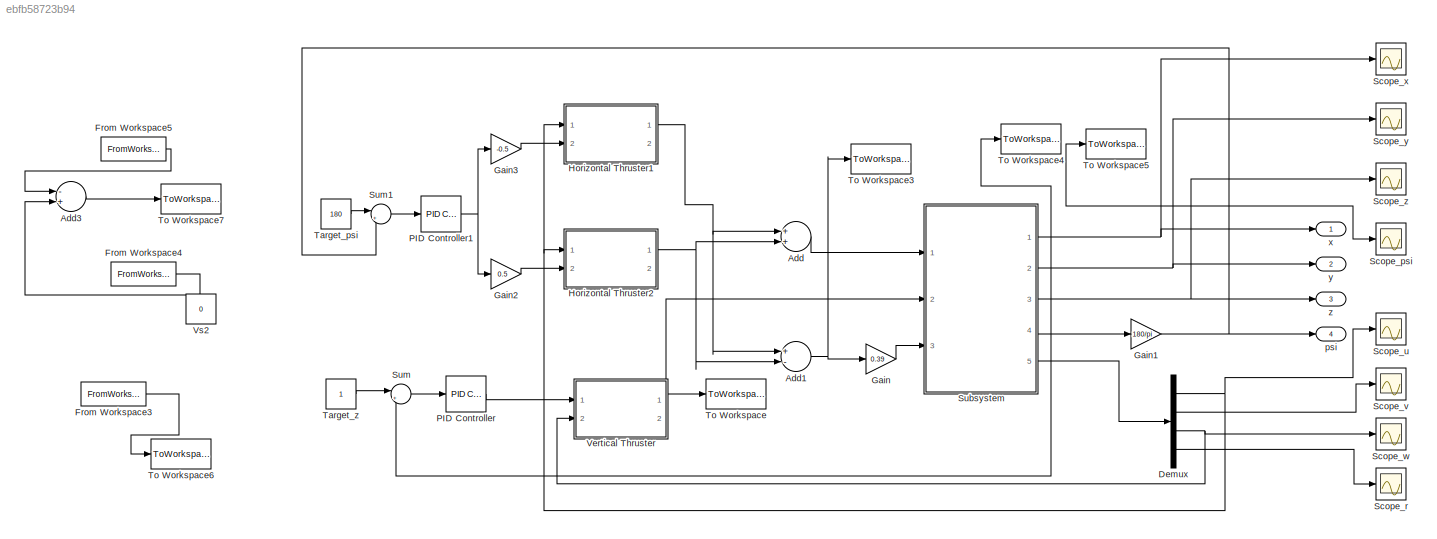
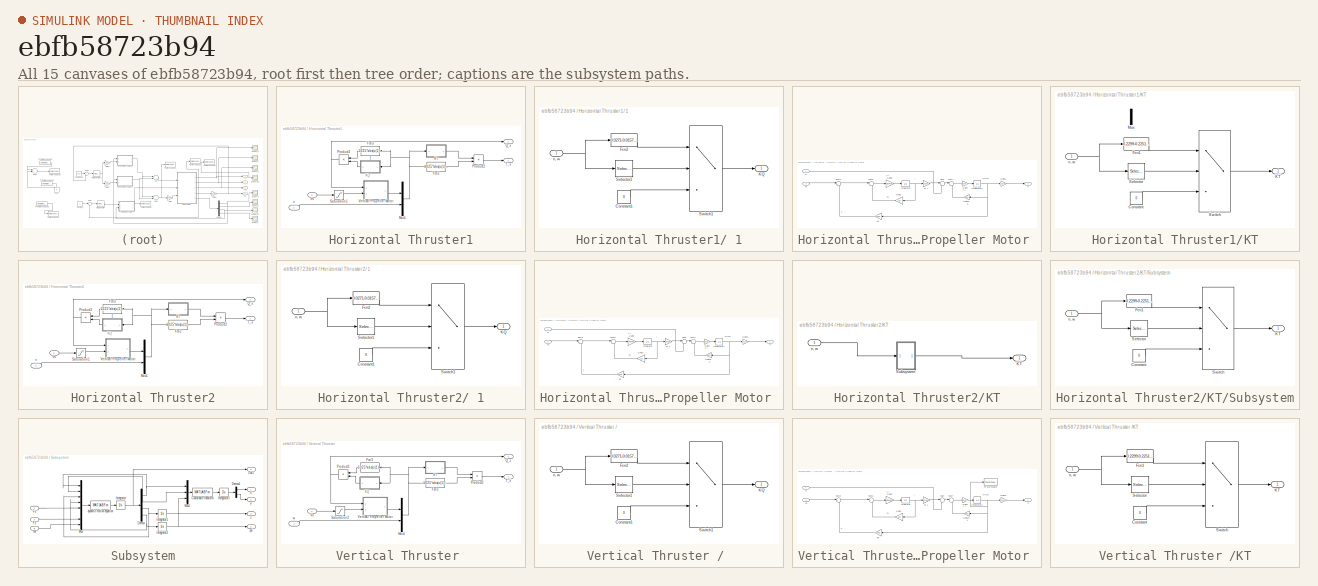
[diagram: thumbnail index - all 15 canvases of the model, root first then tree order]
MODEL slx_ebfb58723b94
KIND model
CONFIG AbsTol = auto
CONFIG EnableMultiTasking = off
CONFIG FixedStep = auto
CONFIG MaxStep = auto
CONFIG MinStep = auto
CONFIG RelTol = 1e-3
CONFIG SampleTimeConstraint = Unconstrained
CONFIG Solver = VariableStepAuto
CONFIG SolverName = VariableStepAuto
CONFIG StartTime = 0.0
CONFIG StopTime = 100
BLOCK [Sum] Add
  InputSameDT = off
  OutDataTypeStr = Inherit: Inherit via internal rule
  Ports = [2, 1]
  SaturateOnIntegerOverflow = off
BLOCK [Sum] Add1
  InputSameDT = off
  Inputs = +-
  OutDataTypeStr = Inherit: Inherit via internal rule
  Ports = [2, 1]
  SaturateOnIntegerOverflow = off
BLOCK [Sum] Add3
  InputSameDT = off
  Inputs = -+
  OutDataTypeStr = Inherit: Inherit via internal rule
  Ports = [2, 1]
  SaturateOnIntegerOverflow = off
BLOCK [Demux] Demux
  DisplayOption = bar
  Ports = [1, 4]
BLOCK [FromWorkspace] From Workspace3
  OutputAfterFinalValue = Setting to zero
  VariableName = signal
  ZeroCross = on
BLOCK [FromWorkspace] From Workspace4
  OutputAfterFinalValue = Setting to zero
  VariableName = signal
  ZeroCross = on
BLOCK [FromWorkspace] From Workspace5
  OutputAfterFinalValue = Setting to zero
  VariableName = signal_180
  ZeroCross = on
BLOCK [Gain] Gain
  Gain = 0.39
  OutDataTypeStr = Inherit: Inherit via internal rule
  ParamDataTypeStr = Inherit: Inherit via internal rule
  SaturateOnIntegerOverflow = off
BLOCK [Gain] Gain1
  Gain = 180/pi
  OutDataTypeStr = Inherit: Inherit via internal rule
  ParamDataTypeStr = Inherit: Inherit via internal rule
  SaturateOnIntegerOverflow = off
BLOCK [Gain] Gain2
  Gain = 0.5
  OutDataTypeStr = Inherit: Inherit via internal rule
  ParamDataTypeStr = Inherit: Inherit via internal rule
  SaturateOnIntegerOverflow = off
BLOCK [Gain] Gain3
  Gain = -0.5
  OutDataTypeStr = Inherit: Inherit via internal rule
  ParamDataTypeStr = Inherit: Inherit via internal rule
  SaturateOnIntegerOverflow = off
BLOCK [SubSystem] Horizontal Thruster1
  Ports = [2, 2]
  RequestExecContextInheritance = off
  Variant = off
BLOCK [SubSystem] Horizontal Thruster1/ 1
  Ports = [1, 1]
  RequestExecContextInheritance = off
  Variant = off
BLOCK [Constant] Horizontal Thruster1/ 1/Constant1
  Value = 0
BLOCK [Fcn] Horizontal Thruster1/ 1/Fcn2
  Expr = 0.0271-0.0157*0.7*u(2)/(u(1)*0.152)
BLOCK [Outport] Horizontal Thruster1/ 1/KQ
  IconDisplay = Port number
BLOCK [Selector] Horizontal Thruster1/ 1/Selector1
  IndexOptions = Index vector (dialog)
  Indices = [ 1 ]
  InputPortWidth = 2
  OutputSizes = 1
  Ports = [1, 1]
BLOCK [Switch] Horizontal Thruster1/ 1/Switch1
  Criteria = u2 ~= 0
  InputSameDT = off
  SaturateOnIntegerOverflow = off
BLOCK [Inport] Horizontal Thruster1/ 1/n, w
  IconDisplay = Port number
BLOCK [SubSystem] Horizontal Thruster1/ Vertical Propeller Motor 
  Ports = [2, 1]
  RequestExecContextInheritance = off
  Variant = off
BLOCK [Gain] Horizontal Thruster1/ Vertical Propeller Motor /Gain10
  Gain = 0.001
BLOCK [Gain] Horizontal Thruster1/ Vertical Propeller Motor /Gain11
  Gain = 1/(2*pi)
BLOCK [Gain] Horizontal Thruster1/ Vertical Propeller Motor /Gain2
  Gain = 11.8
  SaturateOnIntegerOverflow = off
BLOCK [Gain] Horizontal Thruster1/ Vertical Propeller Motor /Gain3
  Gain = 1/0.0468
  SaturateOnIntegerOverflow = off
BLOCK [Gain] Horizontal Thruster1/ Vertical Propeller Motor /Gain4
  Gain = 1/9.275e-4
BLOCK [Integrator] Horizontal Thruster1/ Vertical Propeller Motor /Integrator
  Ports = [1, 1]
BLOCK [Integrator] Horizontal Thruster1/ Vertical Propeller Motor /Integrator3
  Ports = [1, 1]
BLOCK [Gain] Horizontal Thruster1/ Vertical Propeller Motor /Ke
  Gain = 42*60/1000/(2*pi)
  OutDataTypeStr = Inherit: Inherit via internal rule
  ParamDataTypeStr = Inherit: Inherit via internal rule
  SaturateOnIntegerOverflow = off
BLOCK [Gain] Horizontal Thruster1/ Vertical Propeller Motor /Kt 1
  Gain = 0.399
  OutDataTypeStr = Inherit: Inherit via internal rule
  ParamDataTypeStr = Inherit: Inherit via internal rule
  SaturateOnIntegerOverflow = off
BLOCK [Inport] Horizontal Thruster1/ Vertical Propeller Motor /Q 
  IconDisplay = Port number
BLOCK [Sum] Horizontal Thruster1/ Vertical Propeller Motor /Sum
  IconShape = round
  InputSameDT = off
  Inputs = |+-
  OutDataTypeStr = Inherit: Inherit via internal rule
  Ports = [2, 1]
  SaturateOnIntegerOverflow = off
BLOCK [Sum] Horizontal Thruster1/ Vertical Propeller Motor /Sum2
  IconShape = round
  Inputs = |+-
  Ports = [2, 1]
BLOCK [Sum] Horizontal Thruster1/ Vertical Propeller Motor /Sum6
  IconShape = round
  Inputs = |+-
  Ports = [2, 1]
BLOCK [Sum] Horizontal Thruster1/ Vertical Propeller Motor /Sum7
  IconShape = round
  Inputs = |+-
  Ports = [2, 1]
BLOCK [Inport] Horizontal Thruster1/ Vertical Propeller Motor /Vs
  IconDisplay = Port number
  Port = 2
BLOCK [Outport] Horizontal Thruster1/ Vertical Propeller Motor /n
  IconDisplay = Port number
BLOCK [Fcn] Horizontal Thruster1/Fcn2
  Expr = 1025*abs(u(1))*u(1)*0.152^4
BLOCK [Fcn] Horizontal Thruster1/Fcn3
  Expr = 1025*abs(u(1))*u(1)*0.152^5
BLOCK [SubSystem] Horizontal Thruster1/KT
  Ports = [1, 1]
  RequestExecContextInheritance = off
  Variant = off
BLOCK [Constant] Horizontal Thruster1/KT/Constant
  Value = 0
BLOCK [Fcn] Horizontal Thruster1/KT/Fcn1
  Expr = 0.2299-0.2251*0.7*u(2)/(u(1)*0.152)
BLOCK [Outport] Horizontal Thruster1/KT/KT
  IconDisplay = Port number
BLOCK [Mux] Horizontal Thruster1/KT/Mux
  DisplayOption = bar
  Inputs = 2
  Ports = [2, 1]
BLOCK [Selector] Horizontal Thruster1/KT/Selector
  IndexOptions = Index vector (dialog)
  Indices = [ 1 ]
  InputPortWidth = 2
  OutputSizes = 1
  Ports = [1, 1]
BLOCK [Switch] Horizontal Thruster1/KT/Switch
  Criteria = u2 ~= 0
  InputSameDT = off
  SaturateOnIntegerOverflow = off
BLOCK [Inport] Horizontal Thruster1/KT/n, w
  IconDisplay = Port number
BLOCK [Mux] Horizontal Thruster1/Mux1
  DisplayOption = bar
  Inputs = 2
  Ports = [2, 1]
BLOCK [Product] Horizontal Thruster1/Product2
  InputSameDT = off
  OutDataTypeStr = Inherit: Inherit via internal rule
  Ports = [2, 1]
  RndMeth = Floor
  SaturateOnIntegerOverflow = off
BLOCK [Product] Horizontal Thruster1/Product3
  InputSameDT = off
  OutDataTypeStr = Inherit: Inherit via internal rule
  Ports = [2, 1]
  RndMeth = Floor
  SaturateOnIntegerOverflow = off
BLOCK [Outport] Horizontal Thruster1/Q_x
  IconDisplay = Port number
  Port = 2
BLOCK [Saturate] Horizontal Thruster1/Saturation1
  InputPortMap = u0
  LowerLimit = -100
  Ports = [1, 1]
  UpperLimit = 100
BLOCK [Outport] Horizontal Thruster1/T_x
  IconDisplay = Port number
BLOCK [Inport] Horizontal Thruster1/Vs
  IconDisplay = Port number
  Port = 2
BLOCK [Inport] Horizontal Thruster1/v
  IconDisplay = Port number
BLOCK [SubSystem] Horizontal Thruster2
  Ports = [2, 2]
  RequestExecContextInheritance = off
  Variant = off
BLOCK [SubSystem] Horizontal Thruster2/ 1
  Ports = [1, 1]
  RequestExecContextInheritance = off
  Variant = off
BLOCK [Constant] Horizontal Thruster2/ 1/Constant1
  Value = 0
BLOCK [Fcn] Horizontal Thruster2/ 1/Fcn2
  Expr = 0.0271-0.0157*0.7*u(2)/(u(1)*0.152)
BLOCK [Outport] Horizontal Thruster2/ 1/KQ
  IconDisplay = Port number
BLOCK [Selector] Horizontal Thruster2/ 1/Selector1
  IndexOptions = Index vector (dialog)
  Indices = [ 1 ]
  InputPortWidth = 2
  OutputSizes = 1
  Ports = [1, 1]
BLOCK [Switch] Horizontal Thruster2/ 1/Switch1
  Criteria = u2 ~= 0
  InputSameDT = off
  SaturateOnIntegerOverflow = off
BLOCK [Inport] Horizontal Thruster2/ 1/n, w
  IconDisplay = Port number
BLOCK [SubSystem] Horizontal Thruster2/ Vertical Propeller Motor 
  Ports = [2, 1]
  RequestExecContextInheritance = off
  Variant = off
BLOCK [Gain] Horizontal Thruster2/ Vertical Propeller Motor /Gain10
  Gain = 0.001
BLOCK [Gain] Horizontal Thruster2/ Vertical Propeller Motor /Gain11
  Gain = 1/(2*pi)
BLOCK [Gain] Horizontal Thruster2/ Vertical Propeller Motor /Gain2
  Gain = 11.8
  SaturateOnIntegerOverflow = off
BLOCK [Gain] Horizontal Thruster2/ Vertical Propeller Motor /Gain3
  Gain = 1/0.0468
  SaturateOnIntegerOverflow = off
BLOCK [Gain] Horizontal Thruster2/ Vertical Propeller Motor /Gain4
  Gain = 1/9.275e-4
BLOCK [Integrator] Horizontal Thruster2/ Vertical Propeller Motor /Integrator
  Ports = [1, 1]
BLOCK [Integrator] Horizontal Thruster2/ Vertical Propeller Motor /Integrator3
  Ports = [1, 1]
BLOCK [Gain] Horizontal Thruster2/ Vertical Propeller Motor /Ke
  Gain = 42*60/1000/(2*pi)
  OutDataTypeStr = Inherit: Inherit via internal rule
  ParamDataTypeStr = Inherit: Inherit via internal rule
  SaturateOnIntegerOverflow = off
BLOCK [Gain] Horizontal Thruster2/ Vertical Propeller Motor /Kt 1
  Gain = 0.399
  OutDataTypeStr = Inherit: Inherit via internal rule
  ParamDataTypeStr = Inherit: Inherit via internal rule
  SaturateOnIntegerOverflow = off
BLOCK [Inport] Horizontal Thruster2/ Vertical Propeller Motor /Q 
  IconDisplay = Port number
BLOCK [Sum] Horizontal Thruster2/ Vertical Propeller Motor /Sum
  IconShape = round
  InputSameDT = off
  Inputs = |+-
  OutDataTypeStr = Inherit: Inherit via internal rule
  Ports = [2, 1]
  SaturateOnIntegerOverflow = off
BLOCK [Sum] Horizontal Thruster2/ Vertical Propeller Motor /Sum2
  IconShape = round
  Inputs = |+-
  Ports = [2, 1]
BLOCK [Sum] Horizontal Thruster2/ Vertical Propeller Motor /Sum6
  IconShape = round
  Inputs = |+-
  Ports = [2, 1]
BLOCK [Sum] Horizontal Thruster2/ Vertical Propeller Motor /Sum7
  IconShape = round
  Inputs = |+-
  Ports = [2, 1]
BLOCK [Inport] Horizontal Thruster2/ Vertical Propeller Motor /Vs
  IconDisplay = Port number
  Port = 2
BLOCK [Outport] Horizontal Thruster2/ Vertical Propeller Motor /n
  IconDisplay = Port number
BLOCK [Fcn] Horizontal Thruster2/Fcn2
  Expr = 1025*abs(u(1))*u(1)*0.152^4
BLOCK [Fcn] Horizontal Thruster2/Fcn3
  Expr = 1025*abs(u(1))*u(1)*0.152^5
BLOCK [SubSystem] Horizontal Thruster2/KT
  Ports = [1, 1]
  RequestExecContextInheritance = off
  Variant = off
BLOCK [Outport] Horizontal Thruster2/KT/KT
  IconDisplay = Port number
BLOCK [SubSystem] Horizontal Thruster2/KT/Subsystem
  Ports = [1, 1]
  RequestExecContextInheritance = off
  Variant = off
BLOCK [Constant] Horizontal Thruster2/KT/Subsystem/Constant
  Value = 0
BLOCK [Fcn] Horizontal Thruster2/KT/Subsystem/Fcn1
  Expr = 0.2299-0.2251*0.7*u(2)/(u(1)*0.152)
BLOCK [Outport] Horizontal Thruster2/KT/Subsystem/KT
  IconDisplay = Port number
BLOCK [Selector] Horizontal Thruster2/KT/Subsystem/Selector
  IndexOptions = Index vector (dialog)
  Indices = [ 1 ]
  InputPortWidth = 2
  OutputSizes = 1
  Ports = [1, 1]
BLOCK [Switch] Horizontal Thruster2/KT/Subsystem/Switch
  Criteria = u2 ~= 0
  InputSameDT = off
  SaturateOnIntegerOverflow = off
BLOCK [Inport] Horizontal Thruster2/KT/Subsystem/n, w
  IconDisplay = Port number
BLOCK [Inport] Horizontal Thruster2/KT/n, w
  IconDisplay = Port number
BLOCK [Mux] Horizontal Thruster2/Mux1
  DisplayOption = bar
  Inputs = 2
  Ports = [2, 1]
BLOCK [Product] Horizontal Thruster2/Product2
  InputSameDT = off
  OutDataTypeStr = Inherit: Inherit via internal rule
  Ports = [2, 1]
  RndMeth = Floor
  SaturateOnIntegerOverflow = off
BLOCK [Product] Horizontal Thruster2/Product3
  InputSameDT = off
  OutDataTypeStr = Inherit: Inherit via internal rule
  Ports = [2, 1]
  RndMeth = Floor
  SaturateOnIntegerOverflow = off
BLOCK [Outport] Horizontal Thruster2/Q_x
  IconDisplay = Port number
  Port = 2
BLOCK [Saturate] Horizontal Thruster2/Saturation1
  InputPortMap = u0
  LowerLimit = -100
  Ports = [1, 1]
  UpperLimit = 100
BLOCK [Outport] Horizontal Thruster2/T_x
  IconDisplay = Port number
BLOCK [Inport] Horizontal Thruster2/Vs
  IconDisplay = Port number
  Port = 2
BLOCK [Inport] Horizontal Thruster2/v
  IconDisplay = Port number
BLOCK [Reference] PID Controller  REF=simulink/Continuous/PID Controller
  Ports = [1, 1]
  SourceBlock = simulink/Continuous/PID Controller
  SourceProductBaseCode = SL
  SourceProductName = Simulink
  SourceType = PID 1dof
BLOCK [Reference] PID Controller1  REF=simulink/Continuous/PID Controller
  Ports = [1, 1]
  SourceBlock = simulink/Continuous/PID Controller
  SourceProductBaseCode = SL
  SourceProductName = Simulink
  SourceType = PID 1dof
BLOCK [Scope] Scope_psi
  NumInputPorts = 1
  Ports = [1]
  ScopeSpecificationString = Simulink.scopes.TimeScopeBlockCfg('CurrentConfiguration', extmgr.ConfigurationSet(extmgr.Configuration('Core','General UI',true),extmgr.Configuration('Core','Source UI',true),extmgr.Configuration('Sources','WiredSimulink',true,'DataLoggingVariableName','ScopeData3'),extmgr.Configuration('Visuals','Time Domain',true,'SerializedDisplays',{struct('MinYLimReal','-26.98675','MaxYLimReal','242.88075','Y...<+1404ch>
BLOCK [Scope] Scope_r
  NumInputPorts = 1
  Ports = [1]
  ScopeSpecificationString = Simulink.scopes.TimeScopeBlockCfg('CurrentConfiguration', extmgr.ConfigurationSet(extmgr.Configuration('Core','General UI',true,'FigureColor',[0 0 0]),extmgr.Configuration('Core','Source UI',true),extmgr.Configuration('Sources','WiredSimulink',true,'DataLoggingVariableName','ScopeData7'),extmgr.Configuration('Visuals','Time Domain',true,'SerializedDisplays',{struct('MinYLimReal','-0.09461','MaxYLi...<+1504ch>
BLOCK [Scope] Scope_u
  NumInputPorts = 1
  Ports = [1]
  ScopeSpecificationString = Simulink.scopes.TimeScopeBlockCfg('CurrentConfiguration', extmgr.ConfigurationSet(extmgr.Configuration('Core','General UI',true),extmgr.Configuration('Core','Source UI',true),extmgr.Configuration('Sources','WiredSimulink',true,'DataLoggingVariableName','ScopeData4'),extmgr.Configuration('Visuals','Time Domain',true,'SerializedDisplays',{struct('MinYLimReal','-1.00000','MaxYLimReal','1.00000','YLab...<+1366ch>
BLOCK [Scope] Scope_v
  NumInputPorts = 1
  Ports = [1]
  ScopeSpecificationString = Simulink.scopes.TimeScopeBlockCfg('CurrentConfiguration', extmgr.ConfigurationSet(extmgr.Configuration('Core','General UI',true),extmgr.Configuration('Core','Source UI',true),extmgr.Configuration('Sources','WiredSimulink',true,'DataLoggingVariableName','ScopeData5'),extmgr.Configuration('Visuals','Time Domain',true,'SerializedDisplays',{struct('MinYLimReal','-1.00000','MaxYLimReal','1.00000','YLab...<+1366ch>
BLOCK [Scope] Scope_w
  NumInputPorts = 1
  Ports = [1]
  ScopeSpecificationString = Simulink.scopes.TimeScopeBlockCfg('CurrentConfiguration', extmgr.ConfigurationSet(extmgr.Configuration('Core','General UI',true),extmgr.Configuration('Core','Source UI',true),extmgr.Configuration('Sources','WiredSimulink',true,'DataLoggingVariableName','ScopeData6'),extmgr.Configuration('Visuals','Time Domain',true,'SerializedDisplays',{struct('MinYLimReal','-1.00000','MaxYLimReal','1.00000','YLab...<+1421ch>
BLOCK [Scope] Scope_x
  NumInputPorts = 1
  Ports = [1]
  ScopeSpecificationString = Simulink.scopes.TimeScopeBlockCfg('CurrentConfiguration', extmgr.ConfigurationSet(extmgr.Configuration('Core','General UI',true),extmgr.Configuration('Core','Source UI',true),extmgr.Configuration('Sources','WiredSimulink',true),extmgr.Configuration('Visuals','Time Domain',true,'SerializedDisplays',{struct('MinYLimReal','-0.000000000000000000000000000009','MaxYLimReal','0.00000000000000000000000000...<+1586ch>
BLOCK [Scope] Scope_y
  NumInputPorts = 1
  Ports = [1]
  ScopeSpecificationString = Simulink.scopes.TimeScopeBlockCfg('CurrentConfiguration', extmgr.ConfigurationSet(extmgr.Configuration('Core','General UI',true),extmgr.Configuration('Core','Source UI',true),extmgr.Configuration('Sources','WiredSimulink',true,'DataLoggingVariableName','ScopeData1'),extmgr.Configuration('Visuals','Time Domain',true,'SerializedDisplays',{struct('MinYLimReal','-0.0000000000000000000000000000001','Ma...<+1629ch>
BLOCK [Scope] Scope_z
  NumInputPorts = 1
  Ports = [1]
  ScopeSpecificationString = Simulink.scopes.TimeScopeBlockCfg('CurrentConfiguration', extmgr.ConfigurationSet(extmgr.Configuration('Core','General UI',true),extmgr.Configuration('Core','Source UI',true),extmgr.Configuration('Sources','WiredSimulink',true,'DataLoggingVariableName','ScopeData2'),extmgr.Configuration('Visuals','Time Domain',true,'SerializedDisplays',{struct('MinYLimReal','-1.00000','MaxYLimReal','1.00000','YLab...<+1400ch>
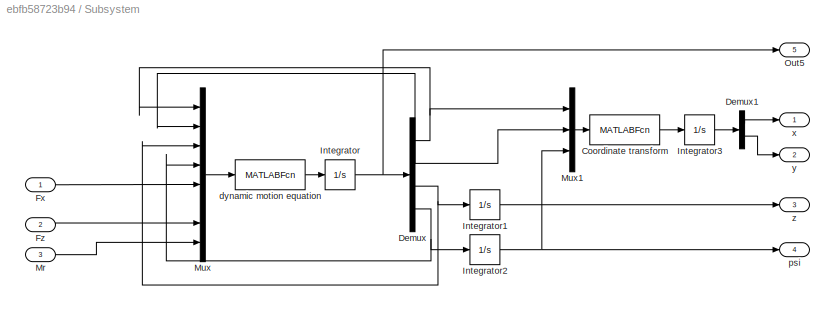
BLOCK [SubSystem] Subsystem
  Ports = [3, 5]
  RequestExecContextInheritance = off
  Variant = off
BLOCK [MATLABFcn] Subsystem/Coordinate transform 
  MATLABFcn = frame
  OutputDimensions = 2
  Ports = [1, 1]
BLOCK [Demux] Subsystem/Demux
  DisplayOption = bar
  Ports = [1, 4]
BLOCK [Demux] Subsystem/Demux1
  DisplayOption = bar
  Outputs = 2
  Ports = [1, 2]
BLOCK [Inport] Subsystem/Fx
  IconDisplay = Port number
BLOCK [Inport] Subsystem/Fz
  IconDisplay = Port number
  Port = 2
BLOCK [Integrator] Subsystem/Integrator
  Ports = [1, 1]
BLOCK [Integrator] Subsystem/Integrator1
  Ports = [1, 1]
BLOCK [Integrator] Subsystem/Integrator2
  Ports = [1, 1]
BLOCK [Integrator] Subsystem/Integrator3
  Ports = [1, 1]
BLOCK [Inport] Subsystem/Mr
  IconDisplay = Port number
  Port = 3
BLOCK [Mux] Subsystem/Mux
  DisplayOption = bar
  Inputs = 8
  Ports = [8, 1]
BLOCK [Mux] Subsystem/Mux1
  DisplayOption = bar
  Inputs = 3
  Ports = [3, 1]
BLOCK [Outport] Subsystem/Out5
  IconDisplay = Port number
  Port = 5
BLOCK [MATLABFcn] Subsystem/dynamic motion equation 
  MATLABFcn = dynamic_equation
  OutputDimensions = 4
  Ports = [1, 1]
BLOCK [Outport] Subsystem/psi
  IconDisplay = Port number
  Port = 4
BLOCK [Outport] Subsystem/x
  IconDisplay = Port number
BLOCK [Outport] Subsystem/y
  IconDisplay = Port number
  Port = 2
BLOCK [Outport] Subsystem/z
  IconDisplay = Port number
  Port = 3
BLOCK [Sum] Sum
  IconShape = round
  InputSameDT = off
  Inputs = |+-
  OutDataTypeStr = Inherit: Inherit via internal rule
  Ports = [2, 1]
  SaturateOnIntegerOverflow = off
BLOCK [Sum] Sum1
  IconShape = round
  InputSameDT = off
  Inputs = |+-
  OutDataTypeStr = Inherit: Inherit via internal rule
  Ports = [2, 1]
  SaturateOnIntegerOverflow = off
BLOCK [Constant] Target_psi
  Value = 180
BLOCK [Constant] Target_z
BLOCK [ToWorkspace] To Workspace
  FixptAsFi = on
  MaxDataPoints = inf
  Ports = [1]
  SampleTime = [0.002,0]
  VariableName = Tz
BLOCK [ToWorkspace] To Workspace3
  FixptAsFi = on
  MaxDataPoints = inf
  Ports = [1]
  SampleTime = [0.002,0]
  VariableName = delta_Tx
BLOCK [ToWorkspace] To Workspace4
  FixptAsFi = on
  MaxDataPoints = inf
  Ports = [1]
  SampleTime = [0.002,0]
  VariableName = z
BLOCK [ToWorkspace] To Workspace5
  FixptAsFi = on
  MaxDataPoints = inf
  Ports = [1]
  SampleTime = [0.002,0]
  VariableName = psi
BLOCK [ToWorkspace] To Workspace6
  FixptAsFi = on
  MaxDataPoints = inf
  Ports = [1]
  SampleTime = 0.002
  Save2DSignal = 2-D array (concatenate along first dimension)
  VariableName = vs
BLOCK [ToWorkspace] To Workspace7
  FixptAsFi = on
  MaxDataPoints = inf
  Ports = [1]
  SampleTime = 0.002
  Save2DSignal = 2-D array (concatenate along first dimension)
  VariableName = delta_vs1
BLOCK [SubSystem] Vertical Thruster 
  Ports = [2, 2]
  RequestExecContextInheritance = off
  Variant = off
BLOCK [SubSystem] Vertical Thruster / 
  Ports = [1, 1]
  RequestExecContextInheritance = off
  Variant = off
BLOCK [Constant] Vertical Thruster / /Constant1
  Value = 0
BLOCK [Fcn] Vertical Thruster / /Fcn2
  Expr = 0.0271-0.0157*0.7*u(2)/(u(1)*0.152)
BLOCK [Outport] Vertical Thruster / /KQ
  IconDisplay = Port number
BLOCK [Selector] Vertical Thruster / /Selector1
  IndexOptions = Index vector (dialog)
  Indices = [ 1 ]
  InputPortWidth = 2
  OutputSizes = 1
  Ports = [1, 1]
BLOCK [Switch] Vertical Thruster / /Switch1
  Criteria = u2 ~= 0
  InputSameDT = off
  SaturateOnIntegerOverflow = off
BLOCK [Inport] Vertical Thruster / /n, w
  IconDisplay = Port number
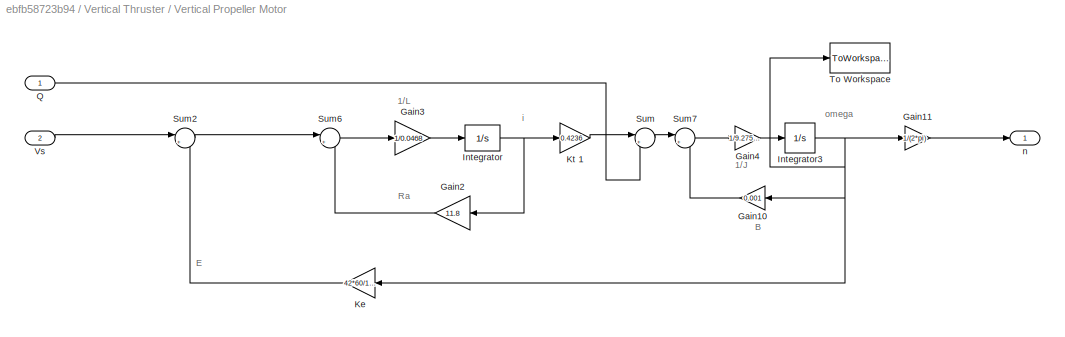
BLOCK [SubSystem] Vertical Thruster / Vertical Propeller Motor 
  Ports = [2, 1]
  RequestExecContextInheritance = off
  Variant = off
BLOCK [Gain] Vertical Thruster / Vertical Propeller Motor /Gain10
  Gain = 0.001
BLOCK [Gain] Vertical Thruster / Vertical Propeller Motor /Gain11
  Gain = 1/(2*pi)
BLOCK [Gain] Vertical Thruster / Vertical Propeller Motor /Gain2
  Gain = 11.8
  SaturateOnIntegerOverflow = off
BLOCK [Gain] Vertical Thruster / Vertical Propeller Motor /Gain3
  Gain = 1/0.0468
  SaturateOnIntegerOverflow = off
BLOCK [Gain] Vertical Thruster / Vertical Propeller Motor /Gain4
  Gain = 1/9.275e-4
BLOCK [Integrator] Vertical Thruster / Vertical Propeller Motor /Integrator
  Ports = [1, 1]
BLOCK [Integrator] Vertical Thruster / Vertical Propeller Motor /Integrator3
  Ports = [1, 1]
BLOCK [Gain] Vertical Thruster / Vertical Propeller Motor /Ke
  Gain = 42*60/1000/(2*pi)
  OutDataTypeStr = Inherit: Inherit via internal rule
  ParamDataTypeStr = Inherit: Inherit via internal rule
  SaturateOnIntegerOverflow = off
BLOCK [Gain] Vertical Thruster / Vertical Propeller Motor /Kt 1
  Gain = 0.4236
  OutDataTypeStr = Inherit: Inherit via internal rule
  ParamDataTypeStr = Inherit: Inherit via internal rule
  SaturateOnIntegerOverflow = off
BLOCK [Inport] Vertical Thruster / Vertical Propeller Motor /Q 
  IconDisplay = Port number
BLOCK [Sum] Vertical Thruster / Vertical Propeller Motor /Sum
  IconShape = round
  InputSameDT = off
  Inputs = |+-
  OutDataTypeStr = Inherit: Inherit via internal rule
  Ports = [2, 1]
  SaturateOnIntegerOverflow = off
BLOCK [Sum] Vertical Thruster / Vertical Propeller Motor /Sum2
  IconShape = round
  Inputs = |+-
  Ports = [2, 1]
BLOCK [Sum] Vertical Thruster / Vertical Propeller Motor /Sum6
  IconShape = round
  Inputs = |+-
  Ports = [2, 1]
BLOCK [Sum] Vertical Thruster / Vertical Propeller Motor /Sum7
  IconShape = round
  Inputs = |+-
  Ports = [2, 1]
BLOCK [ToWorkspace] Vertical Thruster / Vertical Propeller Motor /To Workspace
  FixptAsFi = on
  MaxDataPoints = inf
  Ports = [1]
  SampleTime = 0.002
  Save2DSignal = 2-D array (concatenate along first dimension)
  VariableName = omega
BLOCK [Inport] Vertical Thruster / Vertical Propeller Motor /Vs
  IconDisplay = Port number
  Port = 2
BLOCK [Outport] Vertical Thruster / Vertical Propeller Motor /n
  IconDisplay = Port number
BLOCK [Fcn] Vertical Thruster /Fcn2
  Expr = 1025*abs(u(1))*u(1)*0.152^4
BLOCK [Fcn] Vertical Thruster /Fcn3
  Expr = 1025*abs(u(1))*u(1)*0.152^5
BLOCK [SubSystem] Vertical Thruster /KT
  Ports = [1, 1]
  RequestExecContextInheritance = off
  Variant = off
BLOCK [Constant] Vertical Thruster /KT/Constant
  Value = 0
BLOCK [Fcn] Vertical Thruster /KT/Fcn1
  Expr = 0.2299-0.2251*0.7*u(2)/(u(1)*0.152)
BLOCK [Outport] Vertical Thruster /KT/KT
  IconDisplay = Port number
BLOCK [Selector] Vertical Thruster /KT/Selector
  IndexOptions = Index vector (dialog)
  Indices = [ 1 ]
  InputPortWidth = 2
  OutputSizes = 1
  Ports = [1, 1]
BLOCK [Switch] Vertical Thruster /KT/Switch
  Criteria = u2 ~= 0
  InputSameDT = off
  SaturateOnIntegerOverflow = off
BLOCK [Inport] Vertical Thruster /KT/n, w
  IconDisplay = Port number
BLOCK [Mux] Vertical Thruster /Mux1
  DisplayOption = bar
  Inputs = 2
  Ports = [2, 1]
BLOCK [Product] Vertical Thruster /Product2
  InputSameDT = off
  OutDataTypeStr = Inherit: Inherit via internal rule
  Ports = [2, 1]
  RndMeth = Floor
  SaturateOnIntegerOverflow = off
BLOCK [Product] Vertical Thruster /Product3
  InputSameDT = off
  OutDataTypeStr = Inherit: Inherit via internal rule
  Ports = [2, 1]
  RndMeth = Floor
  SaturateOnIntegerOverflow = off
BLOCK [Outport] Vertical Thruster /Q_z
  IconDisplay = Port number
  Port = 2
BLOCK [Saturate] Vertical Thruster /Saturation2
  InputPortMap = u0
  LowerLimit = -100
  Ports = [1, 1]
  UpperLimit = 100
BLOCK [Outport] Vertical Thruster /T_z
  IconDisplay = Port number
BLOCK [Inport] Vertical Thruster /Vs
  IconDisplay = Port number
BLOCK [Inport] Vertical Thruster /w
  IconDisplay = Port number
  Port = 2
BLOCK [Constant] Vs2
  Value = 0
BLOCK [Outport] psi
  IconDisplay = Port number
  Port = 4
BLOCK [Outport] x
  IconDisplay = Port number
BLOCK [Outport] y
  IconDisplay = Port number
  Port = 2
BLOCK [Outport] z
  IconDisplay = Port number
  Port = 3
ANNOTATION Horizontal Thruster1: KQ
ANNOTATION Horizontal Thruster1/ Vertical Propeller Motor : 1/J
ANNOTATION Horizontal Thruster1/ Vertical Propeller Motor : 1/L
ANNOTATION Horizontal Thruster1/ Vertical Propeller Motor : B
ANNOTATION Horizontal Thruster1/ Vertical Propeller Motor : E
ANNOTATION Horizontal Thruster1/ Vertical Propeller Motor : Ra
ANNOTATION Horizontal Thruster1/ Vertical Propeller Motor : i
ANNOTATION Horizontal Thruster1/ Vertical Propeller Motor : omega
ANNOTATION Horizontal Thruster2: KQ
ANNOTATION Horizontal Thruster2/ Vertical Propeller Motor : 1/J
ANNOTATION Horizontal Thruster2/ Vertical Propeller Motor : 1/L
ANNOTATION Horizontal Thruster2/ Vertical Propeller Motor : B
ANNOTATION Horizontal Thruster2/ Vertical Propeller Motor : E
ANNOTATION Horizontal Thruster2/ Vertical Propeller Motor : Ra
ANNOTATION Horizontal Thruster2/ Vertical Propeller Motor : i
ANNOTATION Horizontal Thruster2/ Vertical Propeller Motor : omega
ANNOTATION Vertical Thruster : KQ
ANNOTATION Vertical Thruster / Vertical Propeller Motor : 1/J
ANNOTATION Vertical Thruster / Vertical Propeller Motor : 1/L
ANNOTATION Vertical Thruster / Vertical Propeller Motor : B
ANNOTATION Vertical Thruster / Vertical Propeller Motor : E
ANNOTATION Vertical Thruster / Vertical Propeller Motor : Ra
ANNOTATION Vertical Thruster / Vertical Propeller Motor : i
ANNOTATION Vertical Thruster / Vertical Propeller Motor : omega
NET Add1:1 -> Gain:1, To Workspace3:1
LINE Add3:1 -> To Workspace7:1
LINE Add:1 -> Subsystem:1
NET Demux:1 -> Horizontal Thruster1:1, Horizontal Thruster2:1, Scope_u:1
LINE Demux:2 -> Scope_v:1
NET Demux:3 -> Scope_w:1, Vertical Thruster :2
LINE Demux:4 -> Scope_r:1
LINE From Workspace3:1 -> To Workspace6:1
LINE From Workspace4:1 -> Add3:2
LINE From Workspace5:1 -> Add3:1
NET Gain1:1 -> Scope_psi:1, Sum1:2, To Workspace5:1, psi:1
LINE Gain2:1 -> Horizontal Thruster2:2
LINE Gain3:1 -> Horizontal Thruster1:2
LINE Gain:1 -> Subsystem:3
LINE Horizontal Thruster1/ 1/Constant1:1 -> Horizontal Thruster1/ 1/Switch1:3
LINE Horizontal Thruster1/ 1/Fcn2:1 -> Horizontal Thruster1/ 1/Switch1:1
LINE Horizontal Thruster1/ 1/Selector1:1 -> Horizontal Thruster1/ 1/Switch1:2
LINE Horizontal Thruster1/ 1/Switch1:1 -> Horizontal Thruster1/ 1/KQ:1
NET Horizontal Thruster1/ 1/n, w:1 -> Horizontal Thruster1/ 1/Fcn2:1, Horizontal Thruster1/ 1/Selector1:1
LINE Horizontal Thruster1/ 1:1 -> Horizontal Thruster1/Product3:2
LINE Horizontal Thruster1/ Vertical Propeller Motor /Gain10:1 -> Horizontal Thruster1/ Vertical Propeller Motor /Sum7:2
LINE Horizontal Thruster1/ Vertical Propeller Motor /Gain11:1 -> Horizontal Thruster1/ Vertical Propeller Motor /n:1
LINE Horizontal Thruster1/ Vertical Propeller Motor /Gain2:1 -> Horizontal Thruster1/ Vertical Propeller Motor /Sum6:2
LINE Horizontal Thruster1/ Vertical Propeller Motor /Gain3:1 -> Horizontal Thruster1/ Vertical Propeller Motor /Integrator:1
LINE Horizontal Thruster1/ Vertical Propeller Motor /Gain4:1 -> Horizontal Thruster1/ Vertical Propeller Motor /Integrator3:1
NET Horizontal Thruster1/ Vertical Propeller Motor /Integrator3:1 -> Horizontal Thruster1/ Vertical Propeller Motor /Gain10:1, Horizontal Thruster1/ Vertical Propeller Motor /Gain11:1, Horizontal Thruster1/ Vertical Propeller Motor /Ke:1
NET Horizontal Thruster1/ Vertical Propeller Motor /Integrator:1 -> Horizontal Thruster1/ Vertical Propeller Motor /Gain2:1, Horizontal Thruster1/ Vertical Propeller Motor /Kt 1:1
LINE Horizontal Thruster1/ Vertical Propeller Motor /Ke:1 -> Horizontal Thruster1/ Vertical Propeller Motor /Sum2:2
LINE Horizontal Thruster1/ Vertical Propeller Motor /Kt 1:1 -> Horizontal Thruster1/ Vertical Propeller Motor /Sum:1
LINE Horizontal Thruster1/ Vertical Propeller Motor /Q :1 -> Horizontal Thruster1/ Vertical Propeller Motor /Sum:2
LINE Horizontal Thruster1/ Vertical Propeller Motor /Sum2:1 -> Horizontal Thruster1/ Vertical Propeller Motor /Sum6:1
LINE Horizontal Thruster1/ Vertical Propeller Motor /Sum6:1 -> Horizontal Thruster1/ Vertical Propeller Motor /Gain3:1
LINE Horizontal Thruster1/ Vertical Propeller Motor /Sum7:1 -> Horizontal Thruster1/ Vertical Propeller Motor /Gain4:1
LINE Horizontal Thruster1/ Vertical Propeller Motor /Sum:1 -> Horizontal Thruster1/ Vertical Propeller Motor /Sum7:1
LINE Horizontal Thruster1/ Vertical Propeller Motor /Vs:1 -> Horizontal Thruster1/ Vertical Propeller Motor /Sum2:1
LINE Horizontal Thruster1/ Vertical Propeller Motor :1 -> Horizontal Thruster1/Mux1:1
LINE Horizontal Thruster1/Fcn2:1 -> Horizontal Thruster1/Product2:2
LINE Horizontal Thruster1/Fcn3:1 -> Horizontal Thruster1/Product3:1
LINE Horizontal Thruster1/KT/Constant:1 -> Horizontal Thruster1/KT/Switch:3
LINE Horizontal Thruster1/KT/Fcn1:1 -> Horizontal Thruster1/KT/Switch:1
LINE Horizontal Thruster1/KT/Selector:1 -> Horizontal Thruster1/KT/Switch:2
LINE Horizontal Thruster1/KT/Switch:1 -> Horizontal Thruster1/KT/KT:1
NET Horizontal Thruster1/KT/n, w:1 -> Horizontal Thruster1/KT/Fcn1:1, Horizontal Thruster1/KT/Selector:1
LINE Horizontal Thruster1/KT:1 -> Horizontal Thruster1/Product2:1
NET Horizontal Thruster1/Mux1:1 -> Horizontal Thruster1/ 1:1, Horizontal Thruster1/Fcn2:1, Horizontal Thruster1/Fcn3:1, Horizontal Thruster1/KT:1
LINE Horizontal Thruster1/Product2:1 -> Horizontal Thruster1/T_x:1
NET Horizontal Thruster1/Product3:1 -> Horizontal Thruster1/ Vertical Propeller Motor :1, Horizontal Thruster1/Q_x:1
LINE Horizontal Thruster1/Saturation1:1 -> Horizontal Thruster1/ Vertical Propeller Motor :2
LINE Horizontal Thruster1/Vs:1 -> Horizontal Thruster1/Saturation1:1
LINE Horizontal Thruster1/v:1 -> Horizontal Thruster1/Mux1:2
NET Horizontal Thruster1:1 -> Add1:1, Add:1
LINE Horizontal Thruster2/ 1/Constant1:1 -> Horizontal Thruster2/ 1/Switch1:3
LINE Horizontal Thruster2/ 1/Fcn2:1 -> Horizontal Thruster2/ 1/Switch1:1
LINE Horizontal Thruster2/ 1/Selector1:1 -> Horizontal Thruster2/ 1/Switch1:2
LINE Horizontal Thruster2/ 1/Switch1:1 -> Horizontal Thruster2/ 1/KQ:1
NET Horizontal Thruster2/ 1/n, w:1 -> Horizontal Thruster2/ 1/Fcn2:1, Horizontal Thruster2/ 1/Selector1:1
LINE Horizontal Thruster2/ 1:1 -> Horizontal Thruster2/Product3:2
LINE Horizontal Thruster2/ Vertical Propeller Motor /Gain10:1 -> Horizontal Thruster2/ Vertical Propeller Motor /Sum7:2
LINE Horizontal Thruster2/ Vertical Propeller Motor /Gain11:1 -> Horizontal Thruster2/ Vertical Propeller Motor /n:1
LINE Horizontal Thruster2/ Vertical Propeller Motor /Gain2:1 -> Horizontal Thruster2/ Vertical Propeller Motor /Sum6:2
LINE Horizontal Thruster2/ Vertical Propeller Motor /Gain3:1 -> Horizontal Thruster2/ Vertical Propeller Motor /Integrator:1
LINE Horizontal Thruster2/ Vertical Propeller Motor /Gain4:1 -> Horizontal Thruster2/ Vertical Propeller Motor /Integrator3:1
NET Horizontal Thruster2/ Vertical Propeller Motor /Integrator3:1 -> Horizontal Thruster2/ Vertical Propeller Motor /Gain10:1, Horizontal Thruster2/ Vertical Propeller Motor /Gain11:1, Horizontal Thruster2/ Vertical Propeller Motor /Ke:1
NET Horizontal Thruster2/ Vertical Propeller Motor /Integrator:1 -> Horizontal Thruster2/ Vertical Propeller Motor /Gain2:1, Horizontal Thruster2/ Vertical Propeller Motor /Kt 1:1
LINE Horizontal Thruster2/ Vertical Propeller Motor /Ke:1 -> Horizontal Thruster2/ Vertical Propeller Motor /Sum2:2
LINE Horizontal Thruster2/ Vertical Propeller Motor /Kt 1:1 -> Horizontal Thruster2/ Vertical Propeller Motor /Sum:1
LINE Horizontal Thruster2/ Vertical Propeller Motor /Q :1 -> Horizontal Thruster2/ Vertical Propeller Motor /Sum:2
LINE Horizontal Thruster2/ Vertical Propeller Motor /Sum2:1 -> Horizontal Thruster2/ Vertical Propeller Motor /Sum6:1
LINE Horizontal Thruster2/ Vertical Propeller Motor /Sum6:1 -> Horizontal Thruster2/ Vertical Propeller Motor /Gain3:1
LINE Horizontal Thruster2/ Vertical Propeller Motor /Sum7:1 -> Horizontal Thruster2/ Vertical Propeller Motor /Gain4:1
LINE Horizontal Thruster2/ Vertical Propeller Motor /Sum:1 -> Horizontal Thruster2/ Vertical Propeller Motor /Sum7:1
LINE Horizontal Thruster2/ Vertical Propeller Motor /Vs:1 -> Horizontal Thruster2/ Vertical Propeller Motor /Sum2:1
LINE Horizontal Thruster2/ Vertical Propeller Motor :1 -> Horizontal Thruster2/Mux1:1
LINE Horizontal Thruster2/Fcn2:1 -> Horizontal Thruster2/Product2:2
LINE Horizontal Thruster2/Fcn3:1 -> Horizontal Thruster2/Product3:1
LINE Horizontal Thruster2/KT/Subsystem/Constant:1 -> Horizontal Thruster2/KT/Subsystem/Switch:3
LINE Horizontal Thruster2/KT/Subsystem/Fcn1:1 -> Horizontal Thruster2/KT/Subsystem/Switch:1
LINE Horizontal Thruster2/KT/Subsystem/Selector:1 -> Horizontal Thruster2/KT/Subsystem/Switch:2
LINE Horizontal Thruster2/KT/Subsystem/Switch:1 -> Horizontal Thruster2/KT/Subsystem/KT:1
NET Horizontal Thruster2/KT/Subsystem/n, w:1 -> Horizontal Thruster2/KT/Subsystem/Fcn1:1, Horizontal Thruster2/KT/Subsystem/Selector:1
LINE Horizontal Thruster2/KT/Subsystem:1 -> Horizontal Thruster2/KT/KT:1
LINE Horizontal Thruster2/KT/n, w:1 -> Horizontal Thruster2/KT/Subsystem:1
LINE Horizontal Thruster2/KT:1 -> Horizontal Thruster2/Product2:1
NET Horizontal Thruster2/Mux1:1 -> Horizontal Thruster2/ 1:1, Horizontal Thruster2/Fcn2:1, Horizontal Thruster2/Fcn3:1, Horizontal Thruster2/KT:1
LINE Horizontal Thruster2/Product2:1 -> Horizontal Thruster2/T_x:1
NET Horizontal Thruster2/Product3:1 -> Horizontal Thruster2/ Vertical Propeller Motor :1, Horizontal Thruster2/Q_x:1
LINE Horizontal Thruster2/Saturation1:1 -> Horizontal Thruster2/ Vertical Propeller Motor :2
LINE Horizontal Thruster2/Vs:1 -> Horizontal Thruster2/Saturation1:1
LINE Horizontal Thruster2/v:1 -> Horizontal Thruster2/Mux1:2
NET Horizontal Thruster2:1 -> Add1:2, Add:2
NET PID Controller1:1 -> Gain2:1, Gain3:1
LINE PID Controller:1 -> Vertical Thruster :1
LINE Subsystem/Coordinate transform :1 -> Subsystem/Integrator3:1
LINE Subsystem/Demux1:1 -> Subsystem/x:1
LINE Subsystem/Demux1:2 -> Subsystem/y:1
NET Subsystem/Demux:1 -> Subsystem/Mux1:1, Subsystem/Mux:1
NET Subsystem/Demux:2 -> Subsystem/Mux1:2, Subsystem/Mux:2
NET Subsystem/Demux:3 -> Subsystem/Integrator1:1, Subsystem/Mux:3
NET Subsystem/Demux:4 -> Subsystem/Integrator2:1, Subsystem/Mux:4
LINE Subsystem/Fx:1 -> Subsystem/Mux:5
LINE Subsystem/Fz:1 -> Subsystem/Mux:7
LINE Subsystem/Integrator1:1 -> Subsystem/z:1
NET Subsystem/Integrator2:1 -> Subsystem/Mux1:3, Subsystem/psi:1
LINE Subsystem/Integrator3:1 -> Subsystem/Demux1:1
NET Subsystem/Integrator:1 -> Subsystem/Demux:1, Subsystem/Out5:1
LINE Subsystem/Mr:1 -> Subsystem/Mux:8
LINE Subsystem/Mux1:1 -> Subsystem/Coordinate transform :1
LINE Subsystem/Mux:1 -> Subsystem/dynamic motion equation :1
LINE Subsystem/dynamic motion equation :1 -> Subsystem/Integrator:1
NET Subsystem:1 -> Scope_x:1, x:1
NET Subsystem:2 -> Scope_y:1, y:1
NET Subsystem:3 -> Scope_z:1, Sum:2, To Workspace4:1, z:1
LINE Subsystem:4 -> Gain1:1
LINE Subsystem:5 -> Demux:1
LINE Sum1:1 -> PID Controller1:1
LINE Sum:1 -> PID Controller:1
LINE Target_psi:1 -> Sum1:1
LINE Target_z:1 -> Sum:1
LINE Vertical Thruster / /Constant1:1 -> Vertical Thruster / /Switch1:3
LINE Vertical Thruster / /Fcn2:1 -> Vertical Thruster / /Switch1:1
LINE Vertical Thruster / /Selector1:1 -> Vertical Thruster / /Switch1:2
LINE Vertical Thruster / /Switch1:1 -> Vertical Thruster / /KQ:1
NET Vertical Thruster / /n, w:1 -> Vertical Thruster / /Fcn2:1, Vertical Thruster / /Selector1:1
LINE Vertical Thruster / :1 -> Vertical Thruster /Product3:2
LINE Vertical Thruster / Vertical Propeller Motor /Gain10:1 -> Vertical Thruster / Vertical Propeller Motor /Sum7:2
LINE Vertical Thruster / Vertical Propeller Motor /Gain11:1 -> Vertical Thruster / Vertical Propeller Motor /n:1
LINE Vertical Thruster / Vertical Propeller Motor /Gain2:1 -> Vertical Thruster / Vertical Propeller Motor /Sum6:2
LINE Vertical Thruster / Vertical Propeller Motor /Gain3:1 -> Vertical Thruster / Vertical Propeller Motor /Integrator:1
LINE Vertical Thruster / Vertical Propeller Motor /Gain4:1 -> Vertical Thruster / Vertical Propeller Motor /Integrator3:1
NET Vertical Thruster / Vertical Propeller Motor /Integrator3:1 -> Vertical Thruster / Vertical Propeller Motor /Gain10:1, Vertical Thruster / Vertical Propeller Motor /Gain11:1, Vertical Thruster / Vertical Propeller Motor /Ke:1, Vertical Thruster / Vertical Propeller Motor /To Workspace:1
NET Vertical Thruster / Vertical Propeller Motor /Integrator:1 -> Vertical Thruster / Vertical Propeller Motor /Gain2:1, Vertical Thruster / Vertical Propeller Motor /Kt 1:1
LINE Vertical Thruster / Vertical Propeller Motor /Ke:1 -> Vertical Thruster / Vertical Propeller Motor /Sum2:2
LINE Vertical Thruster / Vertical Propeller Motor /Kt 1:1 -> Vertical Thruster / Vertical Propeller Motor /Sum:1
LINE Vertical Thruster / Vertical Propeller Motor /Q :1 -> Vertical Thruster / Vertical Propeller Motor /Sum:2
LINE Vertical Thruster / Vertical Propeller Motor /Sum2:1 -> Vertical Thruster / Vertical Propeller Motor /Sum6:1
LINE Vertical Thruster / Vertical Propeller Motor /Sum6:1 -> Vertical Thruster / Vertical Propeller Motor /Gain3:1
LINE Vertical Thruster / Vertical Propeller Motor /Sum7:1 -> Vertical Thruster / Vertical Propeller Motor /Gain4:1
LINE Vertical Thruster / Vertical Propeller Motor /Sum:1 -> Vertical Thruster / Vertical Propeller Motor /Sum7:1
LINE Vertical Thruster / Vertical Propeller Motor /Vs:1 -> Vertical Thruster / Vertical Propeller Motor /Sum2:1
LINE Vertical Thruster / Vertical Propeller Motor :1 -> Vertical Thruster /Mux1:1
LINE Vertical Thruster /Fcn2:1 -> Vertical Thruster /Product2:2
LINE Vertical Thruster /Fcn3:1 -> Vertical Thruster /Product3:1
LINE Vertical Thruster /KT/Constant:1 -> Vertical Thruster /KT/Switch:3
LINE Vertical Thruster /KT/Fcn1:1 -> Vertical Thruster /KT/Switch:1
LINE Vertical Thruster /KT/Selector:1 -> Vertical Thruster /KT/Switch:2
LINE Vertical Thruster /KT/Switch:1 -> Vertical Thruster /KT/KT:1
NET Vertical Thruster /KT/n, w:1 -> Vertical Thruster /KT/Fcn1:1, Vertical Thruster /KT/Selector:1
LINE Vertical Thruster /KT:1 -> Vertical Thruster /Product2:1
NET Vertical Thruster /Mux1:1 -> Vertical Thruster / :1, Vertical Thruster /Fcn2:1, Vertical Thruster /Fcn3:1, Vertical Thruster /KT:1
LINE Vertical Thruster /Product2:1 -> Vertical Thruster /T_z:1
NET Vertical Thruster /Product3:1 -> Vertical Thruster / Vertical Propeller Motor :1, Vertical Thruster /Q_z:1
LINE Vertical Thruster /Saturation2:1 -> Vertical Thruster / Vertical Propeller Motor :2
LINE Vertical Thruster /Vs:1 -> Vertical Thruster /Saturation2:1
LINE Vertical Thruster /w:1 -> Vertical Thruster /Mux1:2
NET Vertical Thruster :1 -> Subsystem:2, To Workspace:1
note: NET lines group one-source signal fan-out (src -> all destinations, sorted); 1:1 wires keep LINE
